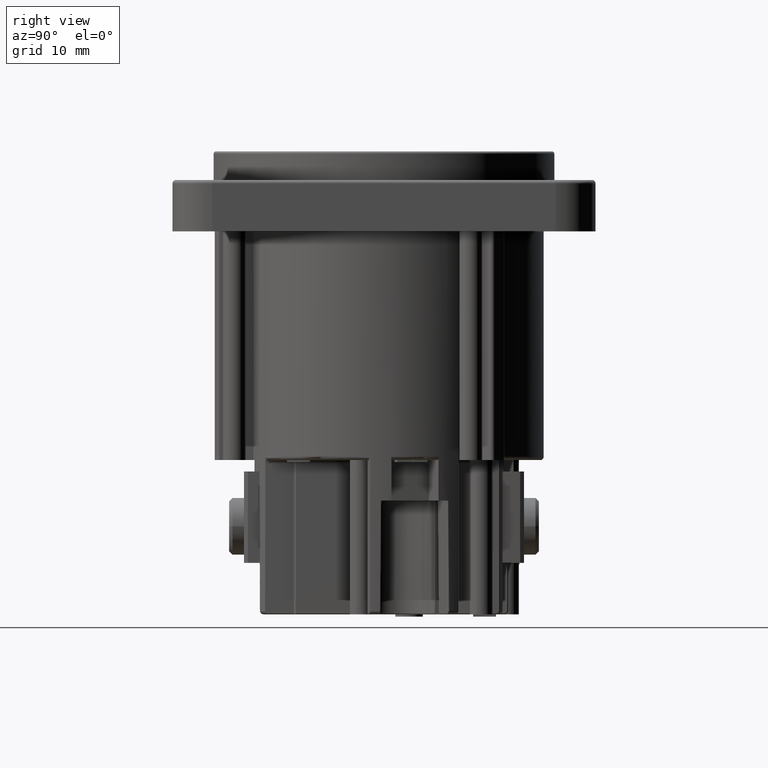
[diagram: clean part render]
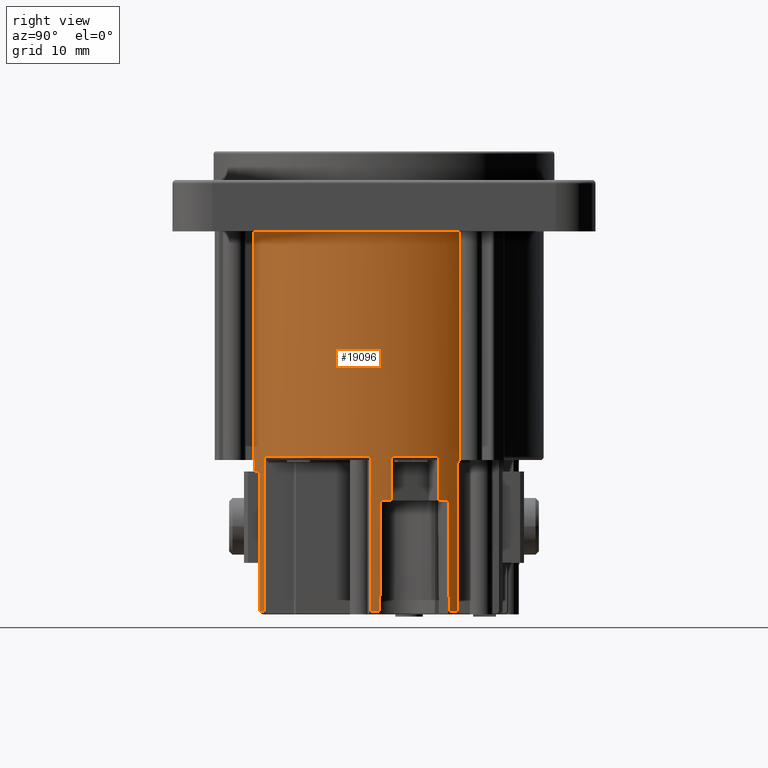
[diagram: same view with one face highlighted and labeled with its STEP entity id]
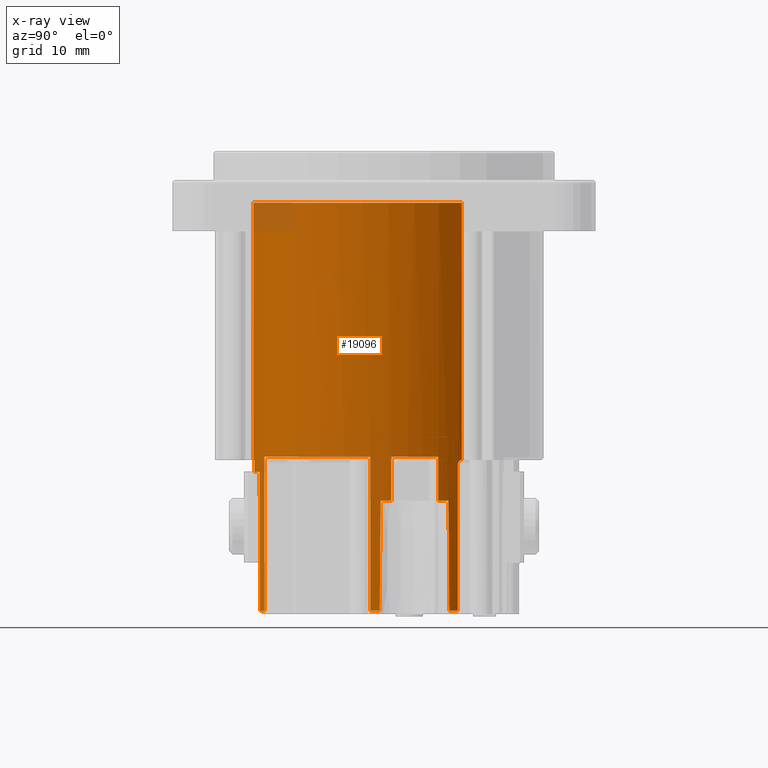
[diagram: x-ray of the same camera — body ghosted, the highlighted face saturated]
A machine part, right view. The second image highlights one B-rep face of the part: STEP entity #19096.
The next image is the same camera in x-ray: the body ghosted, the highlighted face saturated — about 2% of this face is hidden behind the body in this view.
In plain terms, the highlighted cylindrical surface (partial cylindrical patch) has radius 11.8 mm, axis along (0, 0, -1).
Its self-contained STEP definition (entity closure, byte-faithful):
#826=CARTESIAN_POINT('',(0.E0,0.E0,-2.7E1));
#827=DIRECTION('',(0.E0,0.E0,-1.E0));
#828=DIRECTION('',(2.796610169492E-1,-9.600988051232E-1,0.E0));
#829=AXIS2_PLACEMENT_3D('',#826,#827,#828);
#882=CARTESIAN_POINT('',(0.E0,0.E0,-2.7E1));
#883=DIRECTION('',(0.E0,0.E0,1.E0));
#884=DIRECTION('',(8.184483913660E-1,5.745800472262E-1,0.E0));
#885=AXIS2_PLACEMENT_3D('',#882,#883,#884);
#1253=CARTESIAN_POINT('',(0.E0,0.E0,-3.055E1));
#1254=DIRECTION('',(0.E0,0.E0,1.E0));
#1255=DIRECTION('',(9.996744617159E-1,-2.551412536275E-2,0.E0));
#1256=AXIS2_PLACEMENT_3D('',#1253,#1254,#1255);
#1270=CARTESIAN_POINT('',(0.E0,0.E0,-3.055E1));
#1271=DIRECTION('',(0.E0,0.E0,1.E0));
#1272=DIRECTION('',(9.145963573133E-1,4.043680293857E-1,0.E0));
#1273=AXIS2_PLACEMENT_3D('',#1270,#1271,#1272);
#2295=CARTESIAN_POINT('',(0.E0,0.E0,-2.8E1));
#2296=DIRECTION('',(0.E0,0.E0,1.E0));
#2297=DIRECTION('',(3.686440677966E-1,-9.295706273750E-1,0.E0));
#2298=AXIS2_PLACEMENT_3D('',#2295,#2296,#2297);
#2343=DIRECTION('',(0.E0,0.E0,-1.E0));
#2344=VECTOR('',#2343,1.E0);
#2345=CARTESIAN_POINT('',(3.3E0,-1.132916590045E1,-2.7E1));
#2346=LINE('',#2345,#2344);
#2351=CARTESIAN_POINT('',(0.E0,0.E0,-2.8E1));
#2352=DIRECTION('',(0.E0,0.E0,-1.E0));
#2353=DIRECTION('',(3.686440677966E-1,-9.295706273750E-1,0.E0));
#2354=AXIS2_PLACEMENT_3D('',#2351,#2352,#2353);
#2356=DIRECTION('',(0.E0,0.E0,1.E0));
#2357=VECTOR('',#2356,2.25E1);
#2358=CARTESIAN_POINT('',(2.95E0,-1.142530087131E1,-2.7E1));
#2359=LINE('',#2358,#2357);
#2360=DIRECTION('',(0.E0,0.E0,-1.E0));
#2361=VECTOR('',#2360,2.25E1);
#2362=CARTESIAN_POINT('',(9.644081676769E0,6.799388841051E0,-4.5E0));
#2363=LINE('',#2362,#2361);
#2364=DIRECTION('',(1.624018941724E-8,1.060747878856E-8,1.E0));
#2365=VECTOR('',#2364,1.289999999997E1);
#2366=CARTESIAN_POINT('',(9.879293910995E0,6.452871137316E0,-4.019999999997E1));
#2367=LINE('',#2366,#2365);
#2368=CARTESIAN_POINT('',(0.E0,0.E0,-4.02E1));
#2369=DIRECTION('',(0.E0,0.E0,-1.E0));
#2370=DIRECTION('',(8.372283152960E-1,5.468534978096E-1,0.E0));
#2371=AXIS2_PLACEMENT_3D('',#2368,#2369,#2370);
#2373=CARTESIAN_POINT('',(1.032917239527E1,5.705101816727E0,-4.020000000054E1));
#2374=CARTESIAN_POINT('',(1.033495478982E1,5.694632704722E0,-3.859312555021E1));
#2375=CARTESIAN_POINT('',(1.034648757761E1,5.673678634961E0,-3.537791776516E1));
#2376=CARTESIAN_POINT('',(1.035795437272E1,5.652691764420E0,-3.215979221577E1));
#2377=CARTESIAN_POINT('',(1.036367158158E1,5.642190297249E0,-3.055E1));
#2379=CARTESIAN_POINT('',(0.E0,0.E0,-2.67E1));
#2380=DIRECTION('',(0.E0,0.E0,-1.E0));
#2381=DIRECTION('',(9.145963573133E-1,4.043680293857E-1,0.E0));
#2382=AXIS2_PLACEMENT_3D('',#2379,#2380,#2381);
#2384=CARTESIAN_POINT('',(1.179418471038E1,-3.704095129492E-1,
-4.019999999998E1));
#2385=CARTESIAN_POINT('',(1.179454766130E1,-3.588528171430E-1,
-3.859256698324E1));
#2386=CARTESIAN_POINT('',(1.179523981363E1,-3.357389896423E-1,
-3.537680063271E1));
#2387=CARTESIAN_POINT('',(1.179586367067E1,-3.126242635670E-1,
-3.215923364944E1));
#2388=CARTESIAN_POINT('',(1.179615864828E1,-3.010666792814E-1,-3.055E1));
#2390=CARTESIAN_POINT('',(0.E0,0.E0,-4.02E1));
#2391=DIRECTION('',(0.E0,0.E0,-1.E0));
#2392=DIRECTION('',(9.995071925210E-1,-3.139063712009E-2,0.E0));
#2393=AXIS2_PLACEMENT_3D('',#2390,#2391,#2392);
#2395=DIRECTION('',(3.902019356097E-8,-4.013386446130E-9,1.E0));
#2396=VECTOR('',#2395,1.350000000031E1);
#2397=CARTESIAN_POINT('',(1.173806514215E1,-1.207399776873E0,
-4.020000000031E1));
#2398=LINE('',#2397,#2396);
#2399=DIRECTION('',(5.457397051479E-9,-5.558727682889E-9,1.E0));
#2400=VECTOR('',#2399,1.349999996254E1);
#2401=CARTESIAN_POINT('',(5.446153799734E0,-1.046801826594E1,
-4.019999999999E1));
#2402=LINE('',#2401,#2400);
#2403=CARTESIAN_POINT('',(0.E0,0.E0,-4.02E1));
#2404=DIRECTION('',(0.E0,0.E0,-1.E0));
#2405=DIRECTION('',(4.615384615385E-1,-8.871201995901E-1,0.E0));
#2406=AXIS2_PLACEMENT_3D('',#2403,#2404,#2405);
#2408=CARTESIAN_POINT('',(4.649578972962E0,-1.084534036845E1,
-4.020000000036E1));
#2409=CARTESIAN_POINT('',(4.635282157003E0,-1.085146965282E1,
-3.816951976685E1));
#2410=CARTESIAN_POINT('',(4.606668627641E0,-1.086367035023E1,
-3.410570619813E1));
#2411=CARTESIAN_POINT('',(4.578014665375E0,-1.087575392445E1,
-3.003618643181E1));
#2412=CARTESIAN_POINT('',(4.563677671490E0,-1.088176668151E1,-2.8E1));
#3805=CARTESIAN_POINT('',(0.E0,0.E0,-2.67E1));
#3806=DIRECTION('',(0.E0,0.E0,1.E0));
#3807=DIRECTION('',(4.615384615385E-1,-8.871201995901E-1,0.E0));
#3808=AXIS2_PLACEMENT_3D('',#3805,#3806,#3807);
#4287=CARTESIAN_POINT('',(9.879294120493E0,6.452871274153E0,-2.73E1));
#4288=CARTESIAN_POINT('',(9.866985499747E0,6.471715673708E0,-2.726118040942E1));
#4289=CARTESIAN_POINT('',(9.843425635158E0,6.507576855052E0,-2.718794207275E1));
#4290=CARTESIAN_POINT('',(9.801395554031E0,6.570756140293E0,-2.709803744039E1));
#4291=CARTESIAN_POINT('',(9.769445670149E0,6.618069950260E0,-2.705707708169E1));
#4292=CARTESIAN_POINT('',(9.752383047708E0,6.643118611825E0,-2.704094076044E1));
#4299=CARTESIAN_POINT('',(9.752383047708E0,6.643118611825E0,-2.704094076044E1));
#4300=CARTESIAN_POINT('',(9.738523794191E0,6.663464590415E0,-2.702783390258E1));
#4301=CARTESIAN_POINT('',(9.708360012939E0,6.707468790802E0,-2.700731838611E1));
#4302=CARTESIAN_POINT('',(9.674842277771E0,6.755613808341E0,-2.7E1));
#4303=CARTESIAN_POINT('',(9.657691018119E0,6.780044557269E0,-2.7E1));
#7313=CARTESIAN_POINT('',(0.E0,0.E0,-4.5E0));
#7314=DIRECTION('',(0.E0,0.E0,1.E0));
#7315=DIRECTION('',(2.5E-1,-9.682458365519E-1,0.E0));
#7316=AXIS2_PLACEMENT_3D('',#7313,#7314,#7315);
#11831=DIRECTION('',(0.E0,0.E0,-1.E0));
#11832=VECTOR('',#11831,3.85E0);
#11833=CARTESIAN_POINT('',(1.079223701630E1,4.771542746751E0,-2.67E1));
#11834=LINE('',#11833,#11832);
#11839=DIRECTION('',(0.E0,0.E0,1.E0));
#11840=VECTOR('',#11839,3.85E0);
#11841=CARTESIAN_POINT('',(1.178313268556E1,6.307012877953E-1,-3.055E1));
#11842=LINE('',#11841,#11840);
#13624=CARTESIAN_POINT('',(2.95E0,-1.142530087131E1,-4.5E0));
#13625=CARTESIAN_POINT('',(9.644081676769E0,6.799388841051E0,-4.5E0));
#13626=VERTEX_POINT('',#13624);
#13627=VERTEX_POINT('',#13625);
#13654=CARTESIAN_POINT('',(9.644081676769E0,6.799388841051E0,-2.7E1));
#13655=VERTEX_POINT('',#13654);
#13658=CARTESIAN_POINT('',(2.95E0,-1.142530087131E1,-2.7E1));
#13659=VERTEX_POINT('',#13658);
#14205=CARTESIAN_POINT('',(3.3E0,-1.132916590045E1,-2.7E1));
#14206=VERTEX_POINT('',#14205);
#14616=CARTESIAN_POINT('',(1.079223701630E1,4.771542746751E0,-2.67E1));
#14617=CARTESIAN_POINT('',(1.178313268556E1,6.307012877953E-1,-2.67E1));
#14618=VERTEX_POINT('',#14616);
#14619=VERTEX_POINT('',#14617);
#14628=CARTESIAN_POINT('',(1.079223701630E1,4.771542746751E0,-3.055E1));
#14629=VERTEX_POINT('',#14628);
#14630=CARTESIAN_POINT('',(1.178313268556E1,6.307012877953E-1,-3.055E1));
#14631=VERTEX_POINT('',#14630);
#14666=VERTEX_POINT('',#2408);
#14667=VERTEX_POINT('',#2412);
#14766=VERTEX_POINT('',#2373);
#14767=VERTEX_POINT('',#2377);
#14776=VERTEX_POINT('',#2384);
#14777=VERTEX_POINT('',#2388);
#14806=CARTESIAN_POINT('',(5.446153846154E0,-1.046801835516E1,-4.02E1));
#14807=VERTEX_POINT('',#14806);
#14810=CARTESIAN_POINT('',(1.173806566892E1,-1.207399831053E0,-4.02E1));
#14811=VERTEX_POINT('',#14810);
#14814=CARTESIAN_POINT('',(9.879294120493E0,6.452871274153E0,-4.02E1));
#14815=VERTEX_POINT('',#14814);
#14842=CARTESIAN_POINT('',(1.173806566892E1,-1.207399831053E0,-2.67E1));
#14843=VERTEX_POINT('',#14842);
#15069=CARTESIAN_POINT('',(5.446153846154E0,-1.046801835516E1,-2.67E1));
#15070=VERTEX_POINT('',#15069);
#15076=CARTESIAN_POINT('',(9.657691018119E0,6.780044557269E0,-2.7E1));
#15077=VERTEX_POINT('',#15076);
#15086=CARTESIAN_POINT('',(9.879294120493E0,6.452871274153E0,-2.73E1));
#15087=VERTEX_POINT('',#15086);
#15107=VERTEX_POINT('',#4292);
#16021=CARTESIAN_POINT('',(4.35E0,-1.096893340303E1,-2.8E1));
#16022=VERTEX_POINT('',#16021);
#16031=CARTESIAN_POINT('',(3.3E0,-1.132916590045E1,-2.8E1));
#16032=VERTEX_POINT('',#16031);
#19045=CARTESIAN_POINT('',(0.E0,0.E0,-2.7E1));
#19046=DIRECTION('',(0.E0,0.E0,-1.E0));
#19047=DIRECTION('',(1.E0,0.E0,0.E0));
#19048=AXIS2_PLACEMENT_3D('',#19045,#19046,#19047);
#19049=CYLINDRICAL_SURFACE('',#19048,1.18E1);
#19051=ORIENTED_EDGE('',*,*,#19050,.T.);
#19052=ORIENTED_EDGE('',*,*,#19038,.F.);
#19053=ORIENTED_EDGE('',*,*,#17186,.T.);
#19055=ORIENTED_EDGE('',*,*,#19054,.T.);
#19057=ORIENTED_EDGE('',*,*,#19056,.T.);
#19059=ORIENTED_EDGE('',*,*,#19058,.T.);
#19060=ORIENTED_EDGE('',*,*,#17250,.F.);
#19062=ORIENTED_EDGE('',*,*,#19061,.F.);
#19064=ORIENTED_EDGE('',*,*,#19063,.F.);
#19066=ORIENTED_EDGE('',*,*,#19065,.F.);
#19068=ORIENTED_EDGE('',*,*,#19067,.T.);
#19070=ORIENTED_EDGE('',*,*,#19069,.T.);
#19071=ORIENTED_EDGE('',*,*,#17957,.F.);
#19073=ORIENTED_EDGE('',*,*,#19072,.F.);
#19075=ORIENTED_EDGE('',*,*,#19074,.T.);
#19077=ORIENTED_EDGE('',*,*,#19076,.F.);
#19078=ORIENTED_EDGE('',*,*,#17949,.F.);
#19080=ORIENTED_EDGE('',*,*,#19079,.F.);
#19082=ORIENTED_EDGE('',*,*,#19081,.T.);
#19084=ORIENTED_EDGE('',*,*,#19083,.T.);
#19086=ORIENTED_EDGE('',*,*,#19085,.F.);
#19088=ORIENTED_EDGE('',*,*,#19087,.F.);
#19090=ORIENTED_EDGE('',*,*,#19089,.T.);
#19092=ORIENTED_EDGE('',*,*,#19091,.T.);
#19093=ORIENTED_EDGE('',*,*,#18921,.F.);
#19094=EDGE_LOOP('',(#19051,#19052,#19053,#19055,#19057,#19059,#19060,#19062,
#19064,#19066,#19068,#19070,#19071,#19073,#19075,#19077,#19078,#19080,#19082,
#19084,#19086,#19088,#19090,#19092,#19093));
#19095=FACE_OUTER_BOUND('',#19094,.F.);
#830=CIRCLE('',#829,1.18E1);
#886=CIRCLE('',#885,1.18E1);
#1257=CIRCLE('',#1256,1.18E1);
#1274=CIRCLE('',#1273,1.18E1);
#2299=CIRCLE('',#2298,1.18E1);
#2355=CIRCLE('',#2354,1.18E1);
#2372=CIRCLE('',#2371,1.18E1);
#2378=B_SPLINE_CURVE_WITH_KNOTS('',3,(#2373,#2374,#2375,#2376,#2377),
.UNSPECIFIED.,.F.,.F.,(4,1,4),(0.E0,5.E-1,1.E0),.UNSPECIFIED.);
#2383=CIRCLE('',#2382,1.18E1);
#2389=B_SPLINE_CURVE_WITH_KNOTS('',3,(#2384,#2385,#2386,#2387,#2388),
.UNSPECIFIED.,.F.,.F.,(4,1,4),(0.E0,5.E-1,1.E0),.UNSPECIFIED.);
#2394=CIRCLE('',#2393,1.18E1);
#2407=CIRCLE('',#2406,1.18E1);
#2413=B_SPLINE_CURVE_WITH_KNOTS('',3,(#2408,#2409,#2410,#2411,#2412),
.UNSPECIFIED.,.F.,.F.,(4,1,4),(0.E0,5.E-1,1.E0),.UNSPECIFIED.);
#3809=CIRCLE('',#3808,1.18E1);
#4293=B_SPLINE_CURVE_WITH_KNOTS('',3,(#4287,#4288,#4289,#4290,#4291,#4292),
.UNSPECIFIED.,.F.,.F.,(4,1,1,4),(0.E0,3.333333333333E-1,6.666666666667E-1,1.E0),
.UNSPECIFIED.);
#4304=B_SPLINE_CURVE_WITH_KNOTS('',3,(#4299,#4300,#4301,#4302,#4303),
.UNSPECIFIED.,.F.,.F.,(4,1,4),(0.E0,5.E-1,1.E0),.UNSPECIFIED.);
#7317=CIRCLE('',#7316,1.18E1);
#17186=EDGE_CURVE('',#14206,#13659,#830,.T.);
#17250=EDGE_CURVE('',#15077,#13655,#886,.T.);
#17949=EDGE_CURVE('',#14777,#14631,#1257,.T.);
#17957=EDGE_CURVE('',#14629,#14767,#1274,.T.);
#18921=EDGE_CURVE('',#16022,#14667,#2299,.T.);
#19038=EDGE_CURVE('',#14206,#16032,#2346,.T.);
#19050=EDGE_CURVE('',#16022,#16032,#2355,.T.);
#19054=EDGE_CURVE('',#13659,#13626,#2359,.T.);
#19056=EDGE_CURVE('',#13626,#13627,#7317,.T.);
#19058=EDGE_CURVE('',#13627,#13655,#2363,.T.);
#19061=EDGE_CURVE('',#15107,#15077,#4304,.T.);
#19063=EDGE_CURVE('',#15087,#15107,#4293,.T.);
#19065=EDGE_CURVE('',#14815,#15087,#2367,.T.);
#19067=EDGE_CURVE('',#14815,#14766,#2372,.T.);
#19069=EDGE_CURVE('',#14766,#14767,#2378,.T.);
#19072=EDGE_CURVE('',#14618,#14629,#11834,.T.);
#19074=EDGE_CURVE('',#14618,#14619,#2383,.T.);
#19076=EDGE_CURVE('',#14631,#14619,#11842,.T.);
#19079=EDGE_CURVE('',#14776,#14777,#2389,.T.);
#19081=EDGE_CURVE('',#14776,#14811,#2394,.T.);
#19083=EDGE_CURVE('',#14811,#14843,#2398,.T.);
#19085=EDGE_CURVE('',#15070,#14843,#3809,.T.);
#19087=EDGE_CURVE('',#14807,#15070,#2402,.T.);
#19089=EDGE_CURVE('',#14807,#14666,#2407,.T.);
#19091=EDGE_CURVE('',#14666,#14667,#2413,.T.);
#19096=ADVANCED_FACE('',(#19095),#19049,.T.);